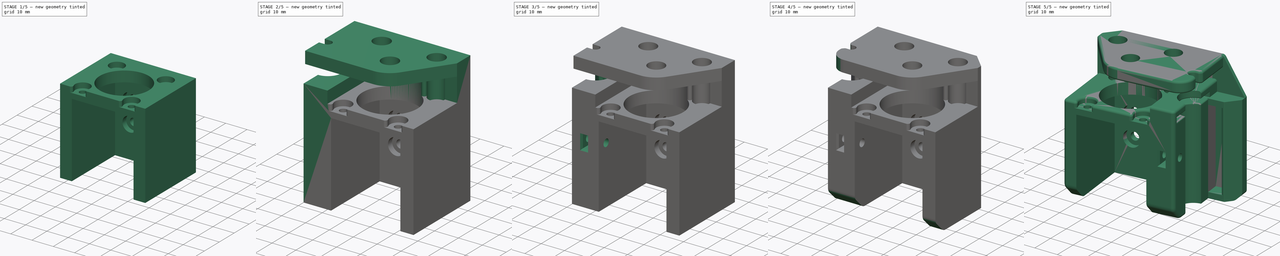
[diagram: build sequence overview — one tinted view per stage of 5, left to right]
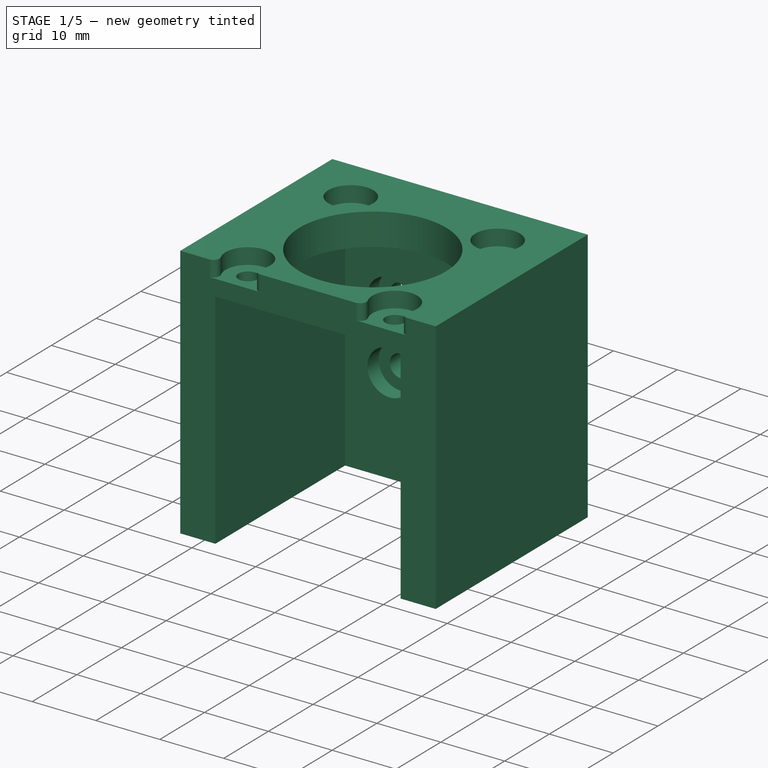
[diagram: stage 1 of 5 — iso view after this stage's code; geometry added in this stage tinted green]
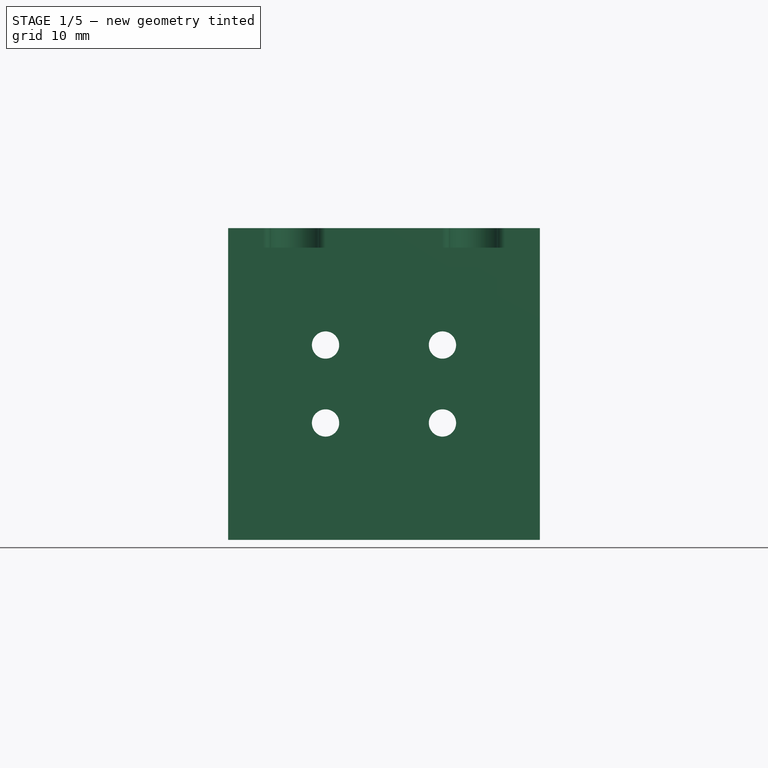
[diagram: stage 1 of 5 — front view after this stage's code; geometry added in this stage tinted green]
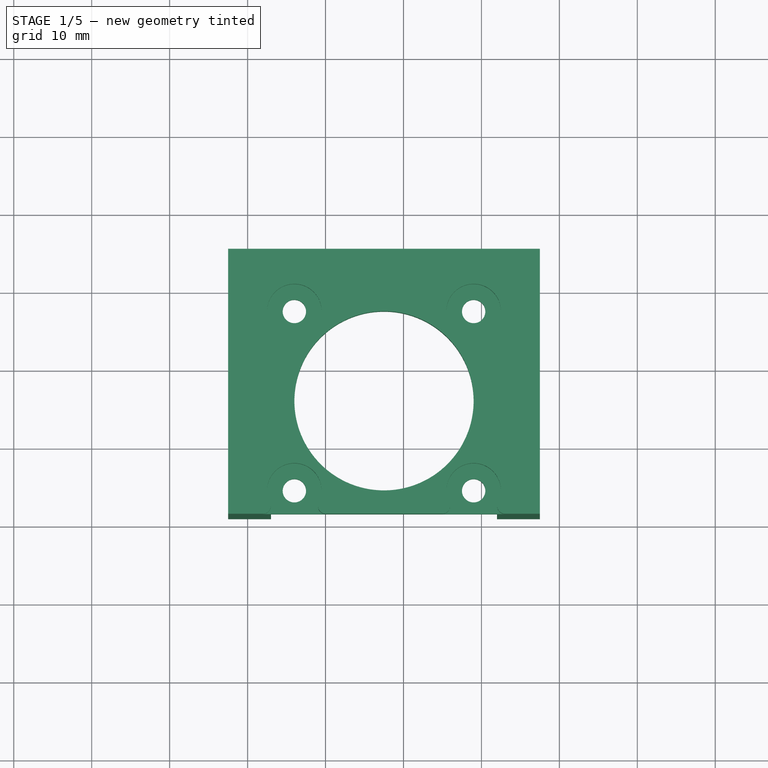
[diagram: stage 1 of 5 — top view after this stage's code; geometry added in this stage tinted green]
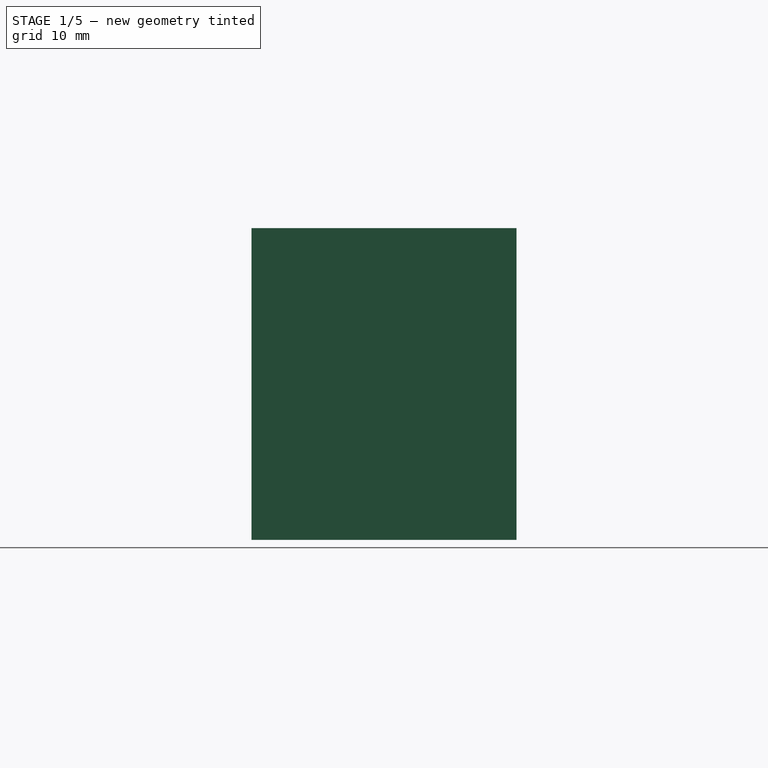
[diagram: stage 1 of 5 — right view after this stage's code; geometry added in this stage tinted green]
FCSTD DOCUMENT  (FreeCAD 1.1R20260106 (Git shallow))
Label: extruder-base
License: CERN Open Hardware Licence strongly-reciprocal
LicenseURL: https://cern-ohl.web.cern.ch/
objects: Sketcher::SketchObject×16, PartDesign::Pad×10, PartDesign::Fillet×9, PartDesign::Pocket×6, PartDesign::Chamfer×5, PartDesign::Plane×1, PartDesign::Body×1, App::Point×1, Part::Mirroring×1, Image::ImagePlane×1
note: 125 computed .brp shape members not serialized (recipe doc carries the construction recipe); baked Part::Feature solids carry a one-line shape summary decoded from their .brp

FEATURE [Sketcher::SketchObject] Sketch
  ArcFitTolerance = 0
  AttachmentSupport = -> [XZ_Plane]
  ExternalTypes = [0]
  FullyConstrained = true
  MakeInternals = false
  MapMode = 5
  Placement = pos=(0,0,0) rot=(1,0,0;1.5708rad)
  sketch-geometry (12):
    g0: LineSegment [constr] StartX=0 StartY=0 StartZ=0 EndX=15 EndY=0 EndZ=0
    g1: LineSegment [constr] StartX=15 StartY=0 StartZ=0 EndX=15 EndY=10 EndZ=0
    g2: LineSegment [constr] StartX=15 StartY=10 StartZ=0 EndX=0 EndY=10 EndZ=0
    g3: LineSegment [constr] StartX=0 StartY=10 StartZ=0 EndX=0 EndY=0 EndZ=0
    g4: Circle CenterX=0 CenterY=10 CenterZ=0 NormalX=0 NormalY=0 NormalZ=1 AngleXU=0 Radius=1.75
    g5: Circle CenterX=15 CenterY=10 CenterZ=0 NormalX=0 NormalY=0 NormalZ=1 AngleXU=0 Radius=1.75
    g6: Circle CenterX=15 CenterY=0 CenterZ=0 NormalX=0 NormalY=0 NormalZ=1 AngleXU=0 Radius=1.75
    g7: Circle CenterX=0 CenterY=0 CenterZ=0 NormalX=0 NormalY=0 NormalZ=1 AngleXU=0 Radius=1.75
    g8: LineSegment StartX=-12.5 StartY=25 StartZ=0 EndX=27.5 EndY=25 EndZ=0
    g9: LineSegment StartX=27.5 StartY=25 StartZ=0 EndX=27.5 EndY=-15 EndZ=0
    g10: LineSegment StartX=27.5 StartY=-15 StartZ=0 EndX=-12.5 EndY=-15 EndZ=0
    g11: LineSegment StartX=-12.5 StartY=-15 StartZ=0 EndX=-12.5 EndY=25 EndZ=0
  constraints (31):
    c: Coincident(g0,g1)
    c: Coincident(g1,g2)
    c: Coincident(g2,g3)
    c: Coincident(g3,g0)
    c: Horizontal(g0)
    c: Horizontal(g2)
    c: Vertical(g1)
    c: Vertical(g3)
    c: Coincident(g0,g-1)
    c: DistanceY(g3,g3) = 10
    c: DistanceX(g0,g0) = 15
    c: Coincident(g4,g2)
    c: Coincident(g5,g1)
    c: Coincident(g6,g0)
    c: Coincident(g7,g0)
    c: Diameter(g4) = 3.5
    c: Equal(g5,g4)
    c: Equal(g7,g4)
    c: Equal(g6,g4)
    c: Coincident(g8,g9)
    c: Coincident(g9,g10)
    c: Coincident(g10,g11)
    c: Coincident(g11,g8)
    c: Horizontal(g8)
    c: Horizontal(g10)
    c: Vertical(g9)
    c: Vertical(g11)
    c: DistanceX(g8,g8) = 40
    c: DistanceY(g11,g11) = 40
    c: DistanceX(g8,g7) = 12.5
    c: DistanceY(g10,g7) = 15
FEATURE [PartDesign::Pad] Pad
  Direction = (0,-1,2e-16)
  Length = 5
  Length2 = 10
  Placement = pos=(0,0,0) rot=(1,0,0;1.5708rad)
  Profile = -> Sketch
  ReferenceAxis = -> Sketch [N_Axis]
  Refine = true
  Reversed = true
  SideType = 0
  Suppressed = false
  Type = 0
  Type2 = 0
FEATURE [Sketcher::SketchObject] Sketch001
  ArcFitTolerance = 0
  AttachmentSupport = -> [XZ_Plane]
  ExternalTypes = [0]
  FullyConstrained = true
  MakeInternals = false
  MapMode = 5
  Placement = pos=(0,0,0) rot=(1,0,0;1.5708rad)
  sketch-geometry (8):
    g0: LineSegment [constr] StartX=0 StartY=0 StartZ=0 EndX=15 EndY=0 EndZ=0
    g1: LineSegment [constr] StartX=15 StartY=0 StartZ=0 EndX=15 EndY=10 EndZ=0
    g2: LineSegment [constr] StartX=15 StartY=10 StartZ=0 EndX=0 EndY=10 EndZ=0
    g3: LineSegment [constr] StartX=0 StartY=10 StartZ=0 EndX=0 EndY=0 EndZ=0
    g4: Circle CenterX=0 CenterY=10 CenterZ=0 NormalX=0 NormalY=0 NormalZ=1 AngleXU=0 Radius=3.5
    g5: Circle CenterX=15 CenterY=10 CenterZ=0 NormalX=0 NormalY=0 NormalZ=1 AngleXU=0 Radius=3.5
    g6: Circle CenterX=15 CenterY=0 CenterZ=0 NormalX=0 NormalY=0 NormalZ=1 AngleXU=0 Radius=3.5
    g7: Circle CenterX=0 CenterY=0 CenterZ=0 NormalX=0 NormalY=0 NormalZ=1 AngleXU=0 Radius=3.5
  constraints (19):
    c: Coincident(g0,g1)
    c: Coincident(g1,g2)
    c: Coincident(g2,g3)
    c: Coincident(g3,g0)
    c: Horizontal(g0)
    c: Horizontal(g2)
    c: Vertical(g1)
    c: Vertical(g3)
    c: Coincident(g0,g-1)
    c: Coincident(g4,g2)
    c: Coincident(g5,g1)
    c: Coincident(g6,g0)
    c: Coincident(g7,g0)
    c: DistanceX(g0,g0) = 15
    c: DistanceY(g3,g3) = 10
    c: Diameter(g4) = 7
    c: Diameter(g7) = 7
    c: Diameter(g5) = 7
    c: Diameter(g6) = 7
FEATURE [PartDesign::Pocket] Pocket
  BaseFeature = -> Pad
  Direction = (0,1,-2e-16)
  Length = 2.5
  Length2 = 5
  Placement = pos=(0,0,0) rot=(1,0,0;1.5708rad)
  Profile = -> Sketch001
  ReferenceAxis = -> Sketch001 [N_Axis]
  Refine = true
  SideType = 0
  Suppressed = false
  Type = 0
  Type2 = 0
FEATURE [Sketcher::SketchObject] Sketch002
  ArcFitTolerance = 0
  AttachmentSupport = -> [XZ_Plane]
  ExternalTypes = [0]
  FullyConstrained = true
  MakeInternals = false
  MapMode = 5
  Placement = pos=(0,0,0) rot=(1,0,0;1.5708rad)
  sketch-geometry (10):
    g0: LineSegment StartX=-12.5 StartY=-15 StartZ=0 EndX=-12.5 EndY=25 EndZ=0
    g1: LineSegment StartX=-12.5 StartY=25 StartZ=0 EndX=27.5 EndY=25 EndZ=0
    g2: LineSegment StartX=27.5 StartY=25 StartZ=0 EndX=27.5 EndY=-15 EndZ=0
    g3: LineSegment StartX=27.5 StartY=-15 StartZ=0 EndX=22 EndY=-15 EndZ=0
    g4: LineSegment StartX=22 StartY=-15 StartZ=0 EndX=22 EndY=20 EndZ=0
    g5: LineSegment StartX=22 StartY=20 StartZ=0 EndX=-7 EndY=20 EndZ=0
    g6: LineSegment StartX=-7 StartY=20 StartZ=0 EndX=-7 EndY=-15 EndZ=0
    g7: LineSegment StartX=-7 StartY=-15 StartZ=0 EndX=-12.5 EndY=-15 EndZ=0
    g8: LineSegment [constr] StartX=7.5 StartY=20 StartZ=0 EndX=7.5 EndY=0 EndZ=0
    g9: LineSegment [constr] StartX=7.5 StartY=20 StartZ=0 EndX=7.5 EndY=25 EndZ=0
  constraints (29):
    c: Vertical(g0)
    c: Coincident(g0,g1)
    c: Horizontal(g1)
    c: Coincident(g1,g2)
    c: Vertical(g2)
    c: Coincident(g2,g3)
    c: Horizontal(g3)
    c: Coincident(g3,g4)
    c: Vertical(g4)
    c: Coincident(g4,g5)
    c: Horizontal(g5)
    c: Coincident(g5,g6)
    c: Vertical(g6)
    c: Coincident(g6,g7)
    c: Coincident(g7,g0)
    c: Horizontal(g7)
    c: DistanceX(g5,g5) = 29
    c: PointOnObject(g8,g-1)
    c: Vertical(g8)
    c: DistanceX(g-1,g8) = 7.5
    c: Symmetric(g5,g4,g8)
    c: DistanceY(g0,g0) = 40
    c: PointOnObject(g3,g7)
    c: DistanceX(g1,g1) = 40
    c: Coincident(g9,g8)
    c: Symmetric(g1,g1,g9)
    c: Vertical(g9)
    c: Distance(g5,g1) = 5
    c: DistanceY(g-1,g0) = 25
FEATURE [PartDesign::Pad] Pad001
  BaseFeature = -> Pocket
  Direction = (0,-1,2e-16)
  Length = 29
  Length2 = 10
  Placement = pos=(0,0,0) rot=(1,0,0;1.5708rad)
  Profile = -> Sketch002
  ReferenceAxis = -> Sketch002 [N_Axis]
  Refine = true
  SideType = 0
  Suppressed = false
  Type = 0
  Type2 = 0
FEATURE [Sketcher::SketchObject] Sketch003
  ArcFitTolerance = 1e-06
  AttachmentSupport = -> [XY_Plane]
  ExternalTypes = [0]
  FullyConstrained = true
  MakeInternals = false
  MapMode = 5
  sketch-geometry (10):
    g0: LineSegment [constr] StartX=-4 StartY=-3 StartZ=0 EndX=-4 EndY=-26 EndZ=0
    g1: LineSegment [constr] StartX=-4 StartY=-26 StartZ=0 EndX=19 EndY=-26 EndZ=0
    g2: LineSegment [constr] StartX=19 StartY=-26 StartZ=0 EndX=19 EndY=-3 EndZ=0
    g3: LineSegment [constr] StartX=19 StartY=-3 StartZ=0 EndX=-4 EndY=-3 EndZ=0
    g4: Circle CenterX=-4 CenterY=-3 CenterZ=0 NormalX=0 NormalY=0 NormalZ=1 AngleXU=0 Radius=1.5
    g5: Circle CenterX=19 CenterY=-3 CenterZ=0 NormalX=0 NormalY=0 NormalZ=1 AngleXU=0 Radius=1.5
    g6: Circle CenterX=19 CenterY=-26 CenterZ=0 NormalX=0 NormalY=0 NormalZ=1 AngleXU=0 Radius=1.5
    g7: Circle CenterX=-4 CenterY=-26 CenterZ=0 NormalX=0 NormalY=0 NormalZ=1 AngleXU=0 Radius=1.5
    g8: LineSegment [constr] StartX=7.5 StartY=-3 StartZ=0 EndX=7.5 EndY=-26 EndZ=0
    g9: Circle CenterX=7.5 CenterY=-14.5 CenterZ=0 NormalX=0 NormalY=0 NormalZ=1 AngleXU=0 Radius=11.5
  constraints (24):
    c: Coincident(g0,g1)
    c: Coincident(g1,g2)
    c: Coincident(g2,g3)
    c: Coincident(g3,g0)
    c: Vertical(g0)
    c: Vertical(g2)
    c: Horizontal(g1)
    c: Horizontal(g3)
    c: Coincident(g4,g0)
    c: Coincident(g5,g2)
    c: Coincident(g6,g1)
    c: Coincident(g7,g0)
    c: Diameter(g4) = 3
    c: Diameter(g5) = 3
    c: Diameter(g6) = 3
    c: Diameter(g7) = 3
    c: DistanceX(g3,g3) = 23
    c: DistanceY(g0,g0) = 23
    c: DistanceX(g0,g-1) = 4
    c: DistanceY(g0,g-1) = 3
    c: Symmetric(g3,g3,g8)
    c: Symmetric(g1,g1,g8)
    c: Symmetric(g8,g8,g9)
    c: Diameter(g9) = 23
FEATURE [PartDesign::Pocket] Pocket001
  BaseFeature = -> Pad001
  Direction = (0,0,-1)
  Length = 50
  Length2 = 5
  Placement = pos=(0,0,0) rot=(1,0,0;1.5708rad)
  Profile = -> Sketch003
  ReferenceAxis = -> Sketch003 [N_Axis]
  Refine = true
  Reversed = true
  SideType = 0
  Suppressed = false
  Type = 0
  Type2 = 0
FEATURE [Sketcher::SketchObject] Sketch004
  ArcFitTolerance = 1e-06
  AttachmentSupport = -> [Pocket001]
  ExternalTypes = [0]
  FullyConstrained = true
  MakeInternals = false
  MapMode = 5
  Placement = pos=(0,1.27e-14,25) rot=(0,0,1;3.14159rad)
  sketch-geometry (4):
    g0: Circle CenterX=-19 CenterY=3 CenterZ=0 NormalX=0 NormalY=0 NormalZ=1 AngleXU=0 Radius=3.5
    g1: Circle CenterX=4 CenterY=3 CenterZ=0 NormalX=0 NormalY=0 NormalZ=1 AngleXU=0 Radius=3.5
    g2: Circle CenterX=-19 CenterY=26 CenterZ=0 NormalX=0 NormalY=0 NormalZ=1 AngleXU=0 Radius=3.5
    g3: Circle CenterX=4 CenterY=26 CenterZ=0 NormalX=0 NormalY=0 NormalZ=1 AngleXU=0 Radius=3.5
  constraints (8):
    c: Coincident(g0,g-3)
    c: Coincident(g1,g-4)
    c: Coincident(g2,g-6)
    c: Coincident(g3,g-5)
    c: Diameter(g2) = 7
    c: Diameter(g3) = 7
    c: Diameter(g0) = 7
    c: Diameter(g1) = 7
FEATURE [PartDesign::Pocket] Pocket002
  BaseFeature = -> Pocket001
  Direction = (0,0,-1)
  Length = 2.5
  Length2 = 5
  Placement = pos=(0,0,0) rot=(1,0,0;1.5708rad)
  Profile = -> Sketch004
  ReferenceAxis = -> Sketch004 [N_Axis]
  Refine = true
  SideType = 0
  Suppressed = false
  Type = 0
  Type2 = 0
FEATURE [PartDesign::Fillet] Fillet
  Base = -> Pocket002 [Edge44,Edge42,Edge40,Edge38]
  BaseFeature = -> Pocket002
  Placement = pos=(0,0,0) rot=(1,0,0;1.5708rad)
  Radius = 1
  Refine = true
  SupportTransform = false
  Suppressed = false
  UseAllEdges = false
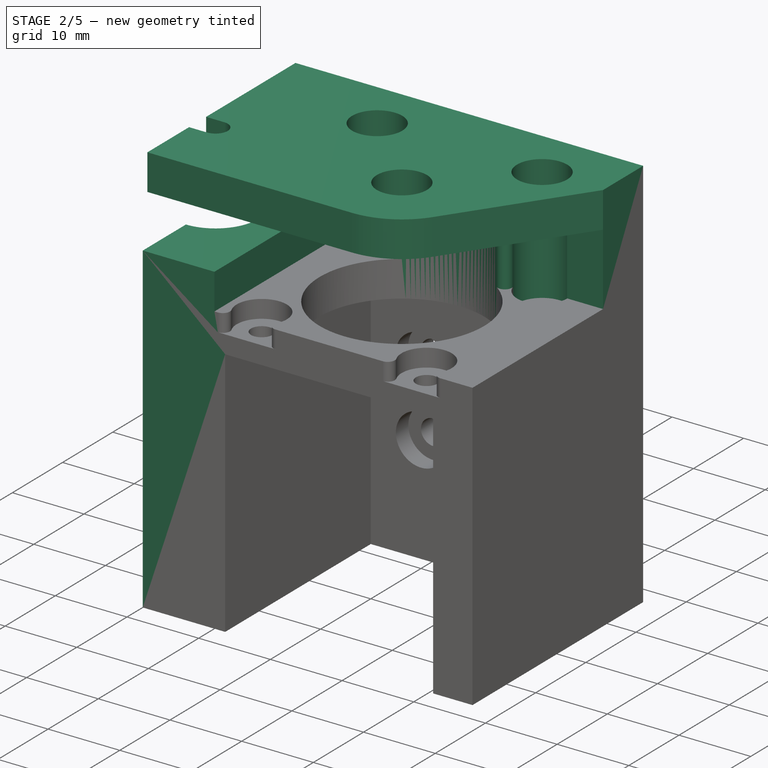
[diagram: stage 2 of 5 — iso view after this stage's code; geometry added in this stage tinted green]
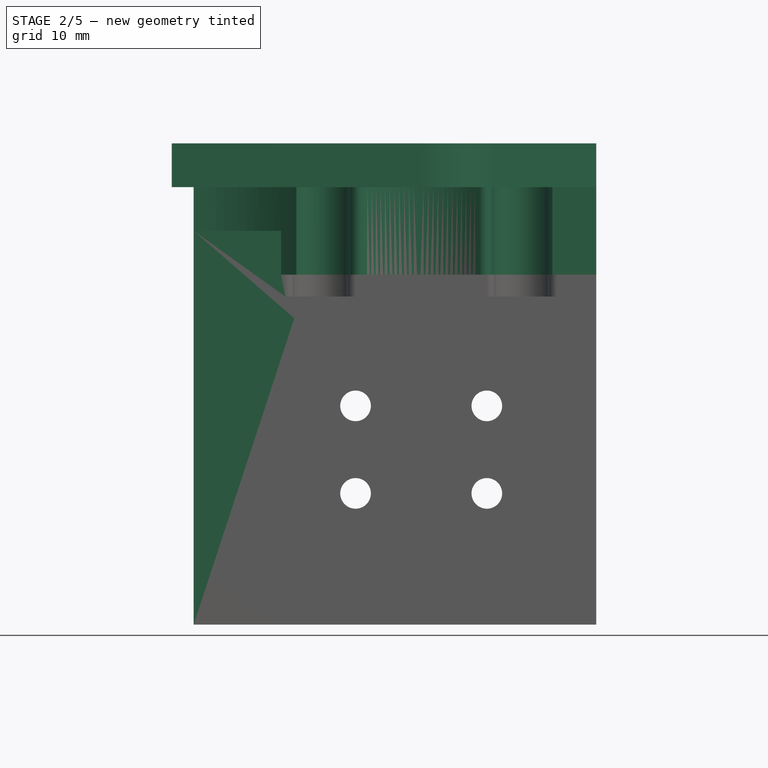
[diagram: stage 2 of 5 — front view after this stage's code; geometry added in this stage tinted green]
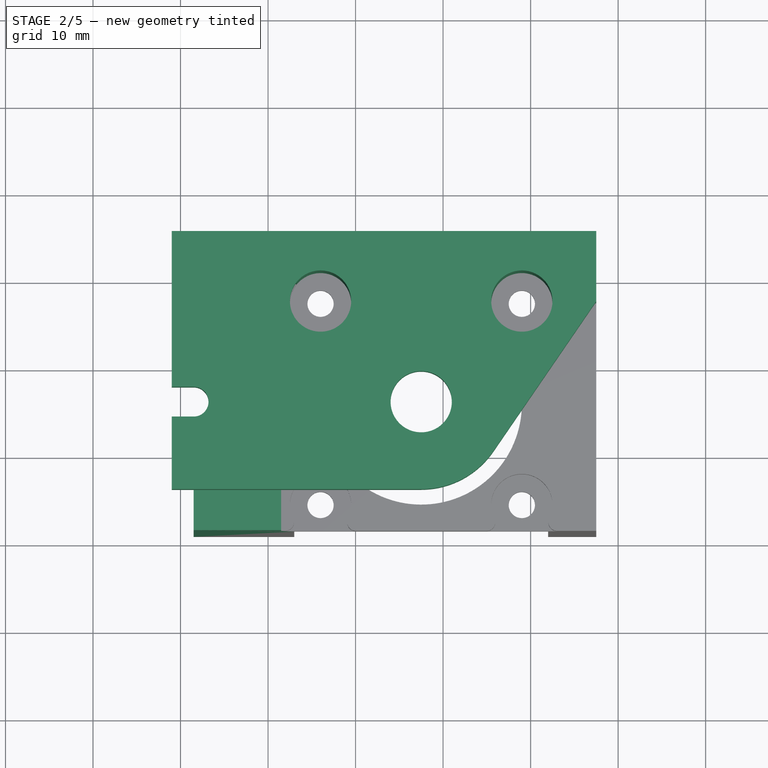
[diagram: stage 2 of 5 — top view after this stage's code; geometry added in this stage tinted green]
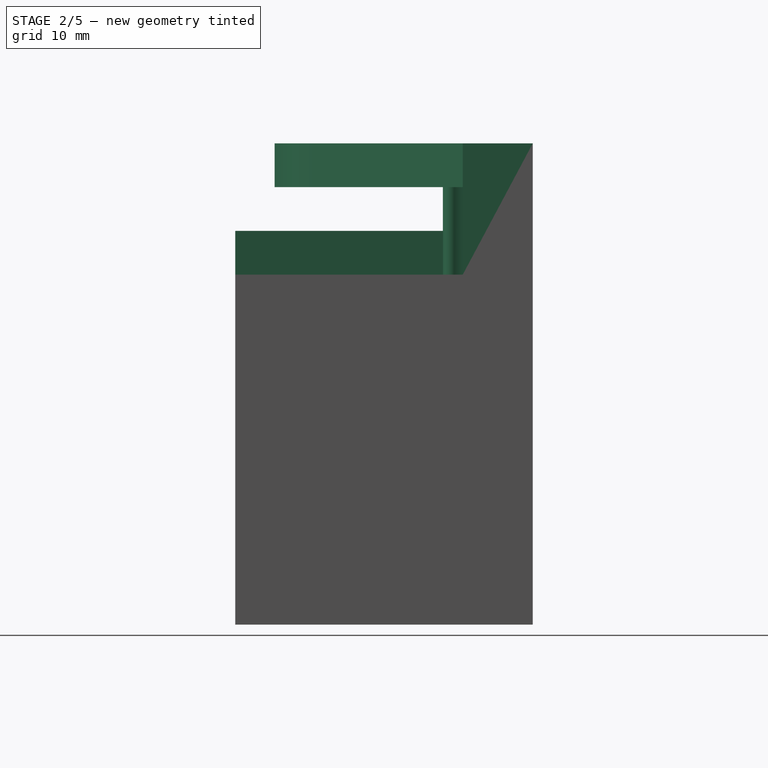
[diagram: stage 2 of 5 — right view after this stage's code; geometry added in this stage tinted green]
FEATURE [Sketcher::SketchObject] Sketch005
  ArcFitTolerance = 1e-06
  AttachmentSupport = -> [Fillet]
  ExternalTypes = [0]
  FullyConstrained = true
  MakeInternals = false
  MapMode = 5
  Placement = pos=(0,1.27e-14,25) rot=(0,0,1;3.14159rad)
  sketch-geometry (7):
    g0: ArcOfCircle CenterX=18.5 CenterY=14.5 CenterZ=0 NormalX=0 NormalY=0 NormalZ=1 AngleXU=0 Radius=5.9 StartAngle=1.5708 EndAngle=4.71239
    g1: LineSegment StartX=18.5 StartY=8.6 StartZ=0 EndX=18.5 EndY=-5 EndZ=0
    g2: LineSegment StartX=18.5 StartY=-5 StartZ=0 EndX=12.5 EndY=-5 EndZ=0
    g3: LineSegment StartX=12.5 StartY=-5 StartZ=0 EndX=12.5 EndY=29 EndZ=0
    g4: LineSegment StartX=12.5 StartY=29 StartZ=0 EndX=18.5 EndY=29 EndZ=0
    g5: LineSegment StartX=18.5 StartY=29 StartZ=0 EndX=18.5 EndY=20.4 EndZ=0
    g6: LineSegment [constr] StartX=0 StartY=14.5 StartZ=0 EndX=18.5 EndY=14.5 EndZ=0
  constraints (22):
    c: Coincident(g0,g1)
    c: Coincident(g1,g2)
    c: Horizontal(g2)
    c: Coincident(g2,g3)
    c: Vertical(g3)
    c: Coincident(g3,g4)
    c: Horizontal(g4)
    c: Coincident(g4,g5)
    c: Coincident(g5,g0)
    c: Vertical(g1)
    c: Vertical(g5)
    c: PointOnObject(g6,g-2)
    c: Coincident(g6,g0)
    c: Horizontal(g6)
    c: DistanceY(g-1,g6) = 14.5
    c: Radius(g0) = 5.9
    c: PointOnObject(g0,g1)
    c: DistanceY(g2,g-1) = 5
    c: DistanceX(g-1,g2) = 12.5
    c: DistanceY(g3,g3) = 34
    c: DistanceX(g2,g2) = 6
    c: DistanceX(g6,g6) = 18.5
FEATURE [PartDesign::Pad] Pad002
  BaseFeature = -> Fillet
  Direction = (0,0,1)
  Length = 40
  Length2 = 10
  Placement = pos=(0,0,0) rot=(1,0,0;1.5708rad)
  Profile = -> Sketch005
  ReferenceAxis = -> Sketch005 [N_Axis]
  Refine = true
  Reversed = true
  SideType = 0
  Suppressed = false
  Type = 0
  Type2 = 0
FEATURE [Sketcher::SketchObject] Sketch006
  ArcFitTolerance = 1e-06
  AttachmentSupport = -> [Pad002]
  ExternalGeometry = -> [Pad002]
  ExternalTypes = [0]
  FullyConstrained = true
  MakeInternals = false
  MapMode = 5
  Placement = pos=(0,1.05e-14,25) rot=(0,0,1;3.14159rad)
  sketch-geometry (6):
    g0: LineSegment StartX=18.5 StartY=-5 StartZ=0 EndX=8.5 EndY=-5 EndZ=0
    g1: LineSegment StartX=8.5 StartY=-5 StartZ=0 EndX=8.5 EndY=29 EndZ=0
    g2: LineSegment StartX=8.5 StartY=29 StartZ=0 EndX=18.5 EndY=29 EndZ=0
    g3: LineSegment StartX=18.5 StartY=29 StartZ=0 EndX=18.5 EndY=20.4 EndZ=0
    g4: ArcOfCircle CenterX=18.5 CenterY=14.5 CenterZ=0 NormalX=0 NormalY=0 NormalZ=1 AngleXU=0 Radius=5.9 StartAngle=1.5708 EndAngle=4.71239
    g5: LineSegment StartX=18.5 StartY=8.6 StartZ=0 EndX=18.5 EndY=-5 EndZ=0
  constraints (15):
    c: Horizontal(g0)
    c: Coincident(g0,g1)
    c: Vertical(g1)
    c: Coincident(g1,g2)
    c: Horizontal(g2)
    c: Coincident(g2,g3)
    c: Vertical(g3)
    c: Coincident(g0,g5)
    c: Coincident(g4,g3)
    c: Coincident(g4,g-3)
    c: Coincident(g5,g4)
    c: Coincident(g4,g-3)
    c: Coincident(g-4,g0)
    c: Coincident(g2,g-5)
    c: DistanceX(g0,g0) = 10
FEATURE [PartDesign::Pad] Pad003
  BaseFeature = -> Pad002
  Direction = (0,0,1)
  Length = 5
  Length2 = 10
  Placement = pos=(0,0,0) rot=(1,0,0;1.5708rad)
  Profile = -> Sketch006
  ReferenceAxis = -> Sketch006 [N_Axis]
  Refine = true
  SideType = 0
  Suppressed = false
  Type = 0
  Type2 = 0
FEATURE [Sketcher::SketchObject] Sketch007
  ArcFitTolerance = 1e-06
  AttachmentSupport = -> [Pad003]
  ExternalGeometry = -> [Pad003]
  ExternalTypes = [0]
  FullyConstrained = true
  MakeInternals = false
  MapMode = 5
  Placement = pos=(0,1.05e-14,25) rot=(0,0,1;3.14159rad)
  sketch-geometry (4):
    g0: LineSegment StartX=18.5 StartY=2 StartZ=0 EndX=18.5 EndY=27 EndZ=0
    g1: LineSegment StartX=18.5 StartY=27 StartZ=0 EndX=10.5 EndY=27 EndZ=0
    g2: LineSegment StartX=10.5 StartY=27 StartZ=0 EndX=10.5 EndY=2 EndZ=0
    g3: LineSegment StartX=10.5 StartY=2 StartZ=0 EndX=18.5 EndY=2 EndZ=0
  constraints (12):
    c: Coincident(g0,g1)
    c: Coincident(g1,g2)
    c: Coincident(g2,g3)
    c: Coincident(g3,g0)
    c: Vertical(g0)
    c: Vertical(g2)
    c: Horizontal(g1)
    c: Horizontal(g3)
    c: DistanceY(g0,g-4) = 12.5
    c: DistanceY(g2,g2) = 25
    c: DistanceX(g3,g3) = 8
    c: DistanceX(g-1,g0) = 18.5
FEATURE [PartDesign::Pocket] Pocket003
  BaseFeature = -> Pad003
  Direction = (0,0,-1)
  Length = 2
  Length2 = 5
  Placement = pos=(0,0,0) rot=(1,0,0;1.5708rad)
  Profile = -> Sketch007
  ReferenceAxis = -> Sketch007 [N_Axis]
  Refine = true
  Reversed = true
  SideType = 0
  Suppressed = false
  Type = 0
  Type2 = 0
FEATURE [PartDesign::Fillet] Fillet001
  Base = -> Pocket003 [Edge119,Edge110]
  BaseFeature = -> Pocket003
  Placement = pos=(0,0,0) rot=(1,0,0;1.5708rad)
  Radius = 5
  Refine = true
  SupportTransform = false
  Suppressed = false
  UseAllEdges = false
FEATURE [Sketcher::SketchObject] Sketch008
  ArcFitTolerance = 1e-06
  AttachmentSupport = -> [Fillet001]
  ExternalGeometry = -> [Fillet001]
  ExternalTypes = [0]
  FullyConstrained = true
  MakeInternals = false
  MapMode = 5
  Placement = pos=(0,1.05e-14,25) rot=(0,0,1;3.14159rad)
  sketch-geometry (10):
    g0: LineSegment StartX=-27.5 StartY=-5 StartZ=0 EndX=-27.5 EndY=3 EndZ=0
    g1: LineSegment StartX=-27.5 StartY=3 StartZ=0 EndX=-22.5 EndY=3 EndZ=0
    g2: LineSegment StartX=-27.5 StartY=-5 StartZ=0 EndX=18.5 EndY=-5 EndZ=0
    g3: LineSegment StartX=18.5 StartY=-5 StartZ=0 EndX=18.5 EndY=-3.5 EndZ=0
    g4: ArcOfCircle CenterX=18.5 CenterY=14.5 CenterZ=0 NormalX=0 NormalY=0 NormalZ=1 AngleXU=0 Radius=18 StartAngle=4.00214 EndAngle=4.71239
    g5: ArcOfCircle CenterX=4 CenterY=3 CenterZ=0 NormalX=0 NormalY=0 NormalZ=1 AngleXU=0 Radius=3.5 StartAngle=2.85552 EndAngle=5.62256
    g6: ArcOfCircle CenterX=-7.5 CenterY=14.5 CenterZ=0 NormalX=0 NormalY=0 NormalZ=1 AngleXU=0 Radius=11.5 StartAngle=4.10024 EndAngle=5.32454
    g7: ArcOfCircle CenterX=-19 CenterY=3 CenterZ=0 NormalX=0 NormalY=0 NormalZ=1 AngleXU=0 Radius=3.5 StartAngle=3.14159 EndAngle=6.56926
    g8: ArcOfCircle CenterX=-0.317118 CenterY=4.26984 CenterZ=0 NormalX=0 NormalY=0 NormalZ=1 AngleXU=0 Radius=1 StartAngle=5.99711 EndAngle=8.46613
    g9: ArcOfCircle CenterX=-14.6829 CenterY=4.26984 CenterZ=0 NormalX=0 NormalY=0 NormalZ=1 AngleXU=0 Radius=1 StartAngle=0.958644 EndAngle=3.42766
  constraints (27):
    c: Coincident(g-4,g0)
    c: Vertical(g0)
    c: Coincident(g0,g1)
    c: PointOnObject(g1,g-5)
    c: Horizontal(g1)
    c: Coincident(g0,g2)
    c: Horizontal(g2)
    c: Coincident(g2,g3)
    c: Vertical(g3)
    c: Coincident(g4,g-3)
    c: Coincident(g4,g3)
    c: Coincident(g5,g-6)
    c: Coincident(g5,g4)
    c: Coincident(g6,g-7)
    c: PointOnObject(g6,g-7)
    c: Coincident(g7,g-5)
    c: Coincident(g7,g1)
    c: PointOnObject(g4,g-6)
    c: Tangent(g8,g5) = 1.5708
    c: Tangent(g8,g6) = 1.5708
    c: Tangent(g9,g7) = 1.5708
    c: Tangent(g9,g6) = 1.5708
    c: Radius(g8) = 1
    c: Radius(g9) = 1
    c: DistanceY(g0,g0) = 8
    c: DistanceX(g-1,g2) = 18.5
    c: Radius(g4) = 18
FEATURE [PartDesign::Pad] Pad004
  BaseFeature = -> Fillet001
  Direction = (0,0,1)
  Length = 15
  Length2 = 10
  Placement = pos=(0,0,0) rot=(1,0,0;1.5708rad)
  Profile = -> Sketch008
  ReferenceAxis = -> Sketch008 [N_Axis]
  Refine = true
  SideType = 0
  Suppressed = false
  Type = 0
  Type2 = 0
FEATURE [Sketcher::SketchObject] Sketch009
  ArcFitTolerance = 1e-06
  AttachmentSupport = -> [Pad004]
  ExternalGeometry = -> [Pad004]
  ExternalTypes = [0]
  FullyConstrained = true
  MakeInternals = false
  MapMode = 5
  Placement = pos=(0,0,40) rot=(0,0,1;3.14159rad)
  sketch-geometry (14):
    g0: ArcOfCircle CenterX=18.5 CenterY=14.5 CenterZ=0 NormalX=0 NormalY=0 NormalZ=1 AngleXU=0 Radius=1.7 StartAngle=1.5708 EndAngle=4.71239
    g1: LineSegment StartX=18.5 StartY=12.8 StartZ=0 EndX=21 EndY=12.8 EndZ=0
    g2: LineSegment StartX=21 StartY=12.8 StartZ=0 EndX=21 EndY=-5 EndZ=0
    g3: LineSegment StartX=21 StartY=-5 StartZ=0 EndX=18.5 EndY=-5 EndZ=0
    g4: LineSegment StartX=18.5 StartY=-5 StartZ=0 EndX=-27.5 EndY=-5 EndZ=0
    g5: LineSegment StartX=-27.5 StartY=-5 StartZ=0 EndX=-27.5 EndY=3 EndZ=0
    g6: LineSegment StartX=-27.5 StartY=3 StartZ=0 EndX=-15.7497 EndY=20.1517 EndZ=0
    g7: LineSegment StartX=18.5 StartY=16.2 StartZ=0 EndX=21 EndY=16.2 EndZ=0
    g8: LineSegment StartX=21 StartY=16.2 StartZ=0 EndX=21 EndY=24.5 EndZ=0
    g9: LineSegment StartX=21 StartY=24.5 StartZ=0 EndX=-7.5 EndY=24.5 EndZ=0
    g10: ArcOfCircle CenterX=-7.5 CenterY=14.5 CenterZ=0 NormalX=0 NormalY=0 NormalZ=1 AngleXU=0 Radius=10 StartAngle=1.5708 EndAngle=2.54095
    g11: Circle CenterX=-19 CenterY=3 CenterZ=0 NormalX=0 NormalY=0 NormalZ=1 AngleXU=0 Radius=3.5
    g12: Circle CenterX=4 CenterY=3 CenterZ=0 NormalX=0 NormalY=0 NormalZ=1 AngleXU=0 Radius=3.5
    g13: Circle CenterX=-7.5 CenterY=14.5 CenterZ=0 NormalX=0 NormalY=0 NormalZ=1 AngleXU=0 Radius=3.5
  constraints (32):
    c: Coincident(g0,g-7)
    c: Tangent(g0,g1) = -1.5708
    c: Coincident(g1,g2)
    c: Vertical(g2)
    c: Coincident(g2,g3)
    c: Coincident(g3,g-3)
    c: Coincident(g3,g4)
    c: Coincident(g4,g-3)
    c: Coincident(g4,g5)
    c: Coincident(g5,g-5)
    c: Coincident(g5,g6)
    c: Tangent(g0,g7) = 1.5708
    c: Coincident(g7,g8)
    c: Vertical(g8)
    c: Coincident(g8,g9)
    c: Horizontal(g9)
    c: Coincident(g10,g-8)
    c: Tangent(g9,g10) = -1.5708
    c: Tangent(g10,g6) = 1.5708
    c: Horizontal(g1)
    c: Horizontal(g7)
    c: Radius(g0) = 1.7
    c: DistanceX(g1,g1) = 2.5
    c: PointOnObject(g7,g2)
    c: Radius(g10) = 10
    c: Horizontal(g3)
    c: Coincident(g11,g-4)
    c: PointOnObject(g-4,g11)
    c: Coincident(g12,g-9)
    c: PointOnObject(g-6,g12)
    c: Coincident(g13,g10)
    c: Diameter(g13) = 7
FEATURE [PartDesign::Pad] Pad005
  BaseFeature = -> Pad004
  Direction = (0,0,1)
  Length = 5
  Length2 = 10
  Placement = pos=(0,0,0) rot=(1,0,0;1.5708rad)
  Profile = -> Sketch009
  ReferenceAxis = -> Sketch009 [N_Axis]
  Refine = true
  Reversed = true
  SideType = 0
  Suppressed = false
  Type = 0
  Type2 = 0
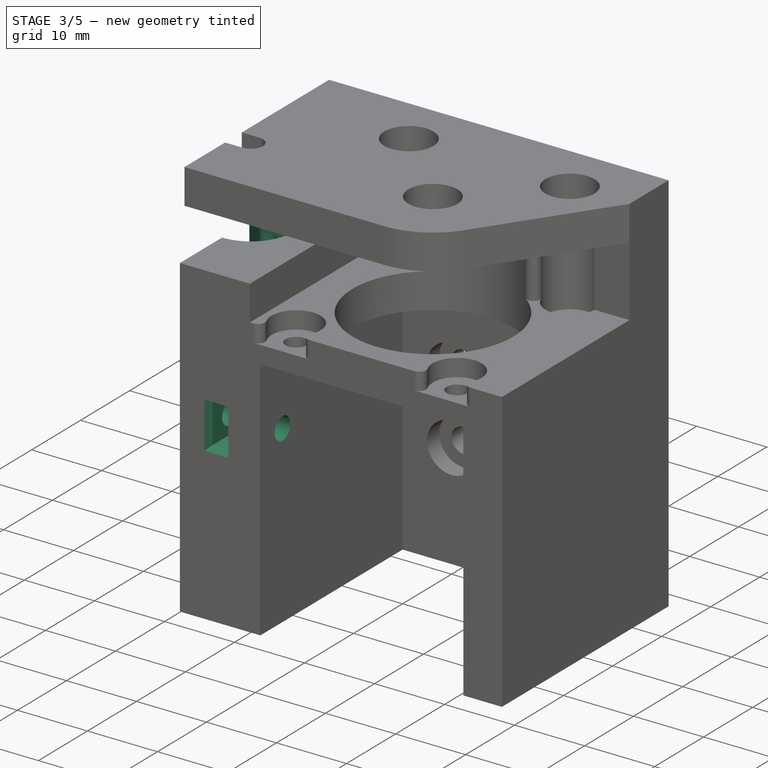
[diagram: stage 3 of 5 — iso view after this stage's code; geometry added in this stage tinted green]
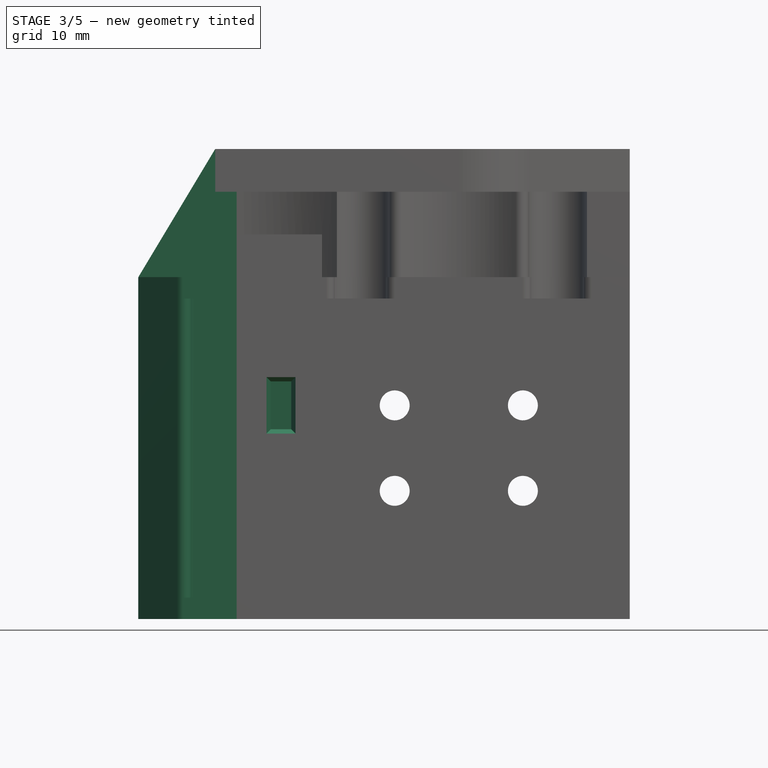
[diagram: stage 3 of 5 — front view after this stage's code; geometry added in this stage tinted green]
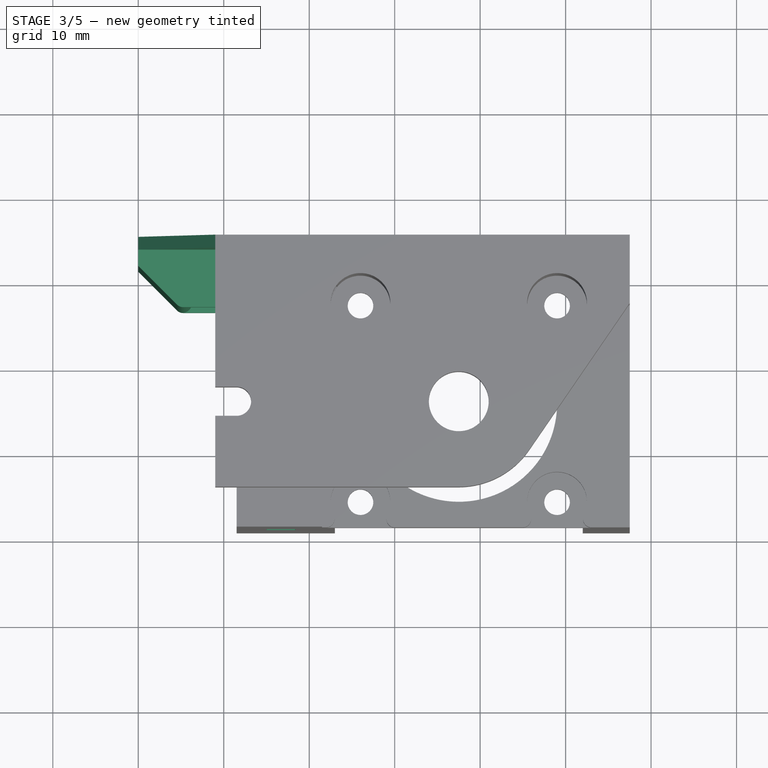
[diagram: stage 3 of 5 — top view after this stage's code; geometry added in this stage tinted green]
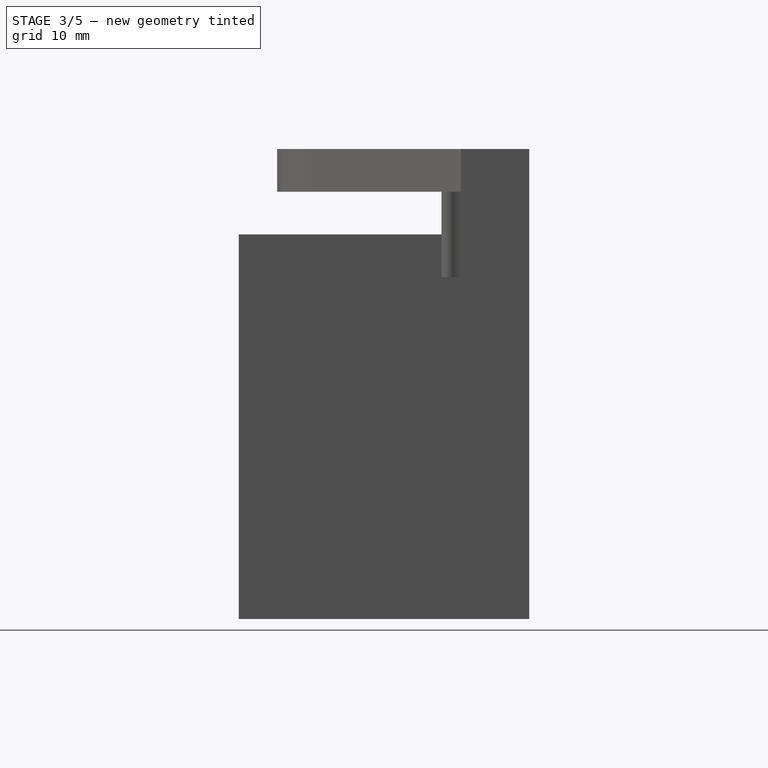
[diagram: stage 3 of 5 — right view after this stage's code; geometry added in this stage tinted green]
FEATURE [Sketcher::SketchObject] Sketch010
  ArcFitTolerance = 1e-06
  AttachmentSupport = -> [Pad005]
  ExternalGeometry = -> [Pad005]
  ExternalTypes = [0]
  FullyConstrained = true
  MakeInternals = false
  MapMode = 5
  Placement = pos=(0,-6e-15,-15) rot=(1,0,0;3.14159rad)
  sketch-geometry (8):
    g0: LineSegment StartX=-18.5 StartY=-5 StartZ=0 EndX=-30 EndY=-5 EndZ=0
    g1: LineSegment StartX=-30 StartY=-5 StartZ=0 EndX=-30 EndY=-1.59901 EndZ=0
    g2: LineSegment StartX=-30 StartY=-1.59901 StartZ=0 EndX=-25.475 EndY=2.92603 EndZ=0
    g3: ArcOfCircle CenterX=-24.7679 CenterY=2.21892 CenterZ=0 NormalX=0 NormalY=0 NormalZ=1 AngleXU=0 Radius=1 StartAngle=5.14872 EndAngle=8.63938
    g4: ArcOfCircle CenterX=-23.5 CenterY=-0.5 CenterZ=0 NormalX=0 NormalY=0 NormalZ=1 AngleXU=0 Radius=2 StartAngle=2.00713 EndAngle=4.71239
    g5: LineSegment StartX=-23.5 StartY=-2.5 StartZ=0 EndX=-18.5 EndY=-2.5 EndZ=0
    g6: LineSegment StartX=-18.5 StartY=-2.5 StartZ=0 EndX=-18.5 EndY=-5 EndZ=0
    g7: LineSegment [constr] StartX=-24.7679 StartY=2.21892 StartZ=0 EndX=-23.5 EndY=-0.5 EndZ=0
  constraints (21):
    c: Coincident(g-4,g0)
    c: Horizontal(g0)
    c: Coincident(g0,g1)
    c: Vertical(g1)
    c: Coincident(g1,g2)
    c: Tangent(g4,g5) = -1.5708
    c: Coincident(g6,g0)
    c: Horizontal(g5)
    c: Tangent(g4,g3) = 1.5708
    c: Tangent(g3,g2) = 1.5708
    c: Vertical(g6)
    c: Radius(g4) = 2
    c: Radius(g3) = 1
    c: Coincident(g7,g3)
    c: Coincident(g7,g4)
    c: Angle(g-1,g7) = 2.00713
    c: DistanceY(g4,g-5) = 15
    c: DistanceX(g0,g-1) = 30
    c: DistanceX(g4,g-5) = 5
    c: Coincident(g5,g6)
    c: Angle(g1,g2) = 2.35619
FEATURE [PartDesign::Pad] Pad006
  BaseFeature = -> Pad005
  Direction = (0,0,-1)
  Length = 40
  Length2 = 10
  Placement = pos=(0,0,0) rot=(1,0,0;1.5708rad)
  Profile = -> Sketch010
  ReferenceAxis = -> Sketch010 [N_Axis]
  Refine = true
  Reversed = true
  SideType = 0
  Suppressed = false
  Type = 0
  Type2 = 0
FEATURE [Sketcher::SketchObject] Sketch011
  ArcFitTolerance = 1e-06
  AttachmentSupport = -> [Pad006]
  ExternalGeometry = -> [Pad006]
  ExternalTypes = [0]
  FullyConstrained = false
  MakeInternals = false
  MapMode = 5
  Placement = pos=(0,0,25) rot=(0,0,1;3.14159rad)
  sketch-geometry (6):
    g0: LineSegment StartX=25.475 StartY=2.92603 StartZ=0 EndX=30 EndY=-1.59901 EndZ=0
    g1: LineSegment StartX=30 StartY=-1.59901 StartZ=0 EndX=30 EndY=-5 EndZ=0
    g2: LineSegment StartX=30 StartY=-5 StartZ=0 EndX=17.0207 EndY=-5 EndZ=0
    g3: LineSegment StartX=17.0207 StartY=-5 StartZ=0 EndX=17.0207 EndY=3.21892 EndZ=0
    g4: LineSegment StartX=17.0207 StartY=3.21892 StartZ=0 EndX=24.7679 EndY=3.21892 EndZ=0
    g5: ArcOfCircle CenterX=24.7679 CenterY=2.21892 CenterZ=0 NormalX=0 NormalY=0 NormalZ=1 AngleXU=0 Radius=1 StartAngle=0.785398 EndAngle=1.5708
  constraints (14):
    c: Coincident(g0,g1)
    c: Coincident(g1,g-4)
    c: Coincident(g1,g2)
    c: Horizontal(g2)
    c: Coincident(g2,g3)
    c: Vertical(g3)
    c: Coincident(g3,g4)
    c: PointOnObject(g4,g-3)
    c: Horizontal(g4)
    c: Coincident(g5,g-3)
    c: Vertical(g1)
    c: Angle(g0,g1) = 2.35619
    c: Tangent(g5,g4) = 1.5708
    c: Tangent(g5,g0) = 1.5708
FEATURE [PartDesign::Pad] Pad007
  BaseFeature = -> Pad006
  Direction = (0,0,1)
  Length = 2.5
  Length2 = 10
  Placement = pos=(0,0,0) rot=(1,0,0;1.5708rad)
  Profile = -> Sketch011
  ReferenceAxis = -> Sketch011 [N_Axis]
  Refine = true
  Reversed = true
  SideType = 0
  Suppressed = false
  Type = 0
  Type2 = 0
FEATURE [Sketcher::SketchObject] Sketch012
  ArcFitTolerance = 1e-06
  AttachmentSupport = -> [Pad007]
  ExternalGeometry = -> [Pad007]
  ExternalTypes = [0]
  FullyConstrained = false
  MakeInternals = false
  MapMode = 5
  Placement = pos=(0,-5.2e-15,-15) rot=(1,0,0;3.14159rad)
  sketch-geometry (6):
    g0: LineSegment StartX=-25.475 StartY=2.92603 StartZ=0 EndX=-30 EndY=-1.59901 EndZ=0
    g1: LineSegment StartX=-30 StartY=-1.59901 StartZ=0 EndX=-30 EndY=-5 EndZ=0
    g2: LineSegment StartX=-30 StartY=-5 StartZ=0 EndX=-15.8633 EndY=-5 EndZ=0
    g3: LineSegment StartX=-15.8633 StartY=-5 StartZ=0 EndX=-15.8633 EndY=3.21892 EndZ=0
    g4: LineSegment StartX=-15.8633 StartY=3.21892 StartZ=0 EndX=-24.7679 EndY=3.21892 EndZ=0
    g5: ArcOfCircle CenterX=-24.7679 CenterY=2.21892 CenterZ=0 NormalX=0 NormalY=0 NormalZ=1 AngleXU=0 Radius=1 StartAngle=1.5708 EndAngle=2.35619
  constraints (13):
    c: Coincident(g0,g-4)
    c: Coincident(g0,g1)
    c: Coincident(g1,g-4)
    c: Coincident(g1,g2)
    c: Horizontal(g2)
    c: Coincident(g2,g3)
    c: Vertical(g3)
    c: Coincident(g3,g4)
    c: PointOnObject(g4,g-3)
    c: Horizontal(g4)
    c: Coincident(g5,g-3)
    c: Tangent(g5,g4) = -1.5708
    c: Tangent(g0,g5) = -1.5708
FEATURE [PartDesign::Pad] Pad008
  BaseFeature = -> Pad007
  Direction = (0,0,-1)
  Length = 2.5
  Length2 = 10
  Placement = pos=(0,0,0) rot=(1,0,0;1.5708rad)
  Profile = -> Sketch012
  ReferenceAxis = -> Sketch012 [N_Axis]
  Refine = true
  Reversed = true
  SideType = 0
  Suppressed = false
  Type = 0
  Type2 = 0
FEATURE [Sketcher::SketchObject] Sketch013
  ArcFitTolerance = 1e-06
  AttachmentSupport = -> [Pad008]
  ExternalGeometry = -> [Pad008]
  ExternalTypes = [0]
  FullyConstrained = true
  MakeInternals = false
  MapMode = 5
  Placement = pos=(0,5,0) rot=(-1,0,0;1.5708rad)
  sketch-geometry (4):
    g0: LineSegment StartX=-30 StartY=-25 StartZ=0 EndX=-21 EndY=-40 EndZ=0
    g1: LineSegment StartX=-21 StartY=-40 StartZ=0 EndX=-18.5 EndY=-40 EndZ=0
    g2: LineSegment StartX=-18.5 StartY=-40 StartZ=0 EndX=-18.5 EndY=-25 EndZ=0
    g3: LineSegment StartX=-18.5 StartY=-25 StartZ=0 EndX=-30 EndY=-25 EndZ=0
  constraints (9):
    c: Coincident(g-3,g0)
    c: Coincident(g0,g-4)
    c: Coincident(g0,g1)
    c: Horizontal(g1)
    c: Coincident(g1,g2)
    c: Coincident(g2,g-3)
    c: Vertical(g2)
    c: Coincident(g2,g3)
    c: Coincident(g3,g0)
FEATURE [PartDesign::Pad] Pad009
  BaseFeature = -> Pad008
  Direction = (0,1,2e-16)
  Length = 1.5
  Length2 = 10
  Placement = pos=(0,0,0) rot=(1,0,0;1.5708rad)
  Profile = -> Sketch013
  ReferenceAxis = -> Sketch013 [N_Axis]
  Refine = true
  Reversed = true
  SideType = 0
  Suppressed = false
  Type = 0
  Type2 = 0
FEATURE [Sketcher::SketchObject] Sketch014
  ArcFitTolerance = 1e-06
  AttachmentSupport = -> [Pad009]
  ExternalGeometry = -> [Pad009]
  ExternalTypes = [0]
  FullyConstrained = true
  MakeInternals = false
  MapMode = 5
  Placement = pos=(-18.5,0,0) rot=(0.707107,0,-0.707107;3.14159rad)
  sketch-geometry (3):
    g0: Circle CenterX=-10 CenterY=24.5 CenterZ=0 NormalX=0 NormalY=0 NormalZ=1 AngleXU=0 Radius=1.6
    g1: LineSegment [constr] StartX=-25 StartY=14.5 StartZ=0 EndX=-10 EndY=14.5 EndZ=0
    g2: LineSegment [constr] StartX=-10 StartY=24.5 StartZ=0 EndX=-10 EndY=14.5 EndZ=0
  constraints (8):
    c: Diameter(g0) = 3.2
    c: Symmetric(g-3,g-3,g1)
    c: Horizontal(g1)
    c: Coincident(g2,g0)
    c: Coincident(g2,g1)
    c: Vertical(g2)
    c: DistanceX(g1,g1) = 15
    c: DistanceY(g2,g2) = 10
FEATURE [PartDesign::Pocket] Pocket004
  BaseFeature = -> Pad009
  Direction = (1,0,2e-16)
  Length = 12
  Length2 = 5
  Placement = pos=(0,0,0) rot=(1,0,0;1.5708rad)
  Profile = -> Sketch014
  ReferenceAxis = -> Sketch014 [N_Axis]
  Refine = true
  SideType = 0
  Suppressed = false
  Type = 0
  Type2 = 0
FEATURE [Sketcher::SketchObject] Sketch015
  ArcFitTolerance = 1e-06
  AttachmentSupport = -> [Pocket004]
  ExternalGeometry = -> [Pocket004]
  ExternalTypes = [0]
  FullyConstrained = true
  MakeInternals = false
  MapMode = 5
  Placement = pos=(0,-29,9e-15) rot=(1,0,0;1.5708rad)
  sketch-geometry (5):
    g0: LineSegment StartX=-14.5 StartY=12.8 StartZ=0 EndX=-14.5 EndY=7.2 EndZ=0
    g1: LineSegment StartX=-14.5 StartY=7.2 StartZ=0 EndX=-12.1 EndY=7.2 EndZ=0
    g2: LineSegment StartX=-12.1 StartY=7.2 StartZ=0 EndX=-12.1 EndY=12.8 EndZ=0
    g3: LineSegment StartX=-12.1 StartY=12.8 StartZ=0 EndX=-14.5 EndY=12.8 EndZ=0
    g4: LineSegment [constr] StartX=-18.5 StartY=10 StartZ=0 EndX=-14.5 EndY=10 EndZ=0
  constraints (14):
    c: Coincident(g0,g1)
    c: Coincident(g1,g2)
    c: Coincident(g2,g3)
    c: Coincident(g3,g0)
    c: Vertical(g0)
    c: Vertical(g2)
    c: Horizontal(g1)
    c: Horizontal(g3)
    c: Symmetric(g-3,g-3,g4)
    c: Symmetric(g0,g0,g4)
    c: Horizontal(g4)
    c: DistanceY(g0,g0) = 5.6
    c: DistanceX(g3,g3) = 2.4
    c: DistanceX(g4,g4) = 4
FEATURE [PartDesign::Pocket] Pocket005
  BaseFeature = -> Pocket004
  Direction = (0,1,-2e-16)
  Length = 7.5
  Length2 = 5
  Placement = pos=(0,0,0) rot=(1,0,0;1.5708rad)
  Profile = -> Sketch015
  ReferenceAxis = -> Sketch015 [N_Axis]
  Refine = true
  SideType = 0
  Suppressed = false
  Type = 0
  Type2 = 0
FEATURE [PartDesign::Chamfer] Chamfer
  Angle = 45
  Base = -> Pocket005 [Edge101,Edge102,Edge99,Edge100]
  BaseFeature = -> Pocket005
  ChamferType = 1
  FlipDirection = false
  Placement = pos=(0,0,0) rot=(1,0,0;1.5708rad)
  Refine = true
  Size = 0.5
  Size2 = 1
  SupportTransform = false
  Suppressed = false
  UseAllEdges = false
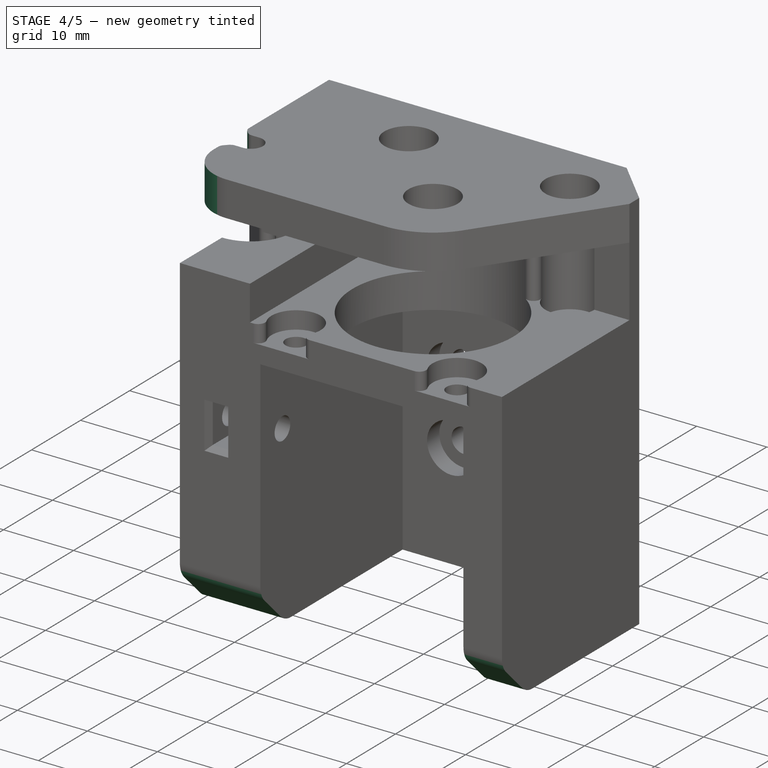
[diagram: stage 4 of 5 — iso view after this stage's code; geometry added in this stage tinted green]
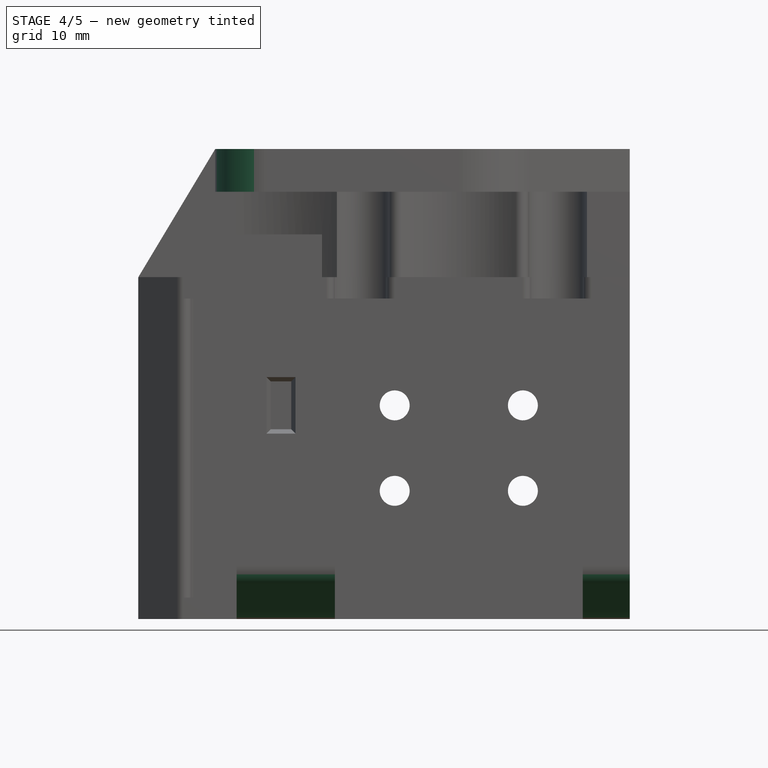
[diagram: stage 4 of 5 — front view after this stage's code; geometry added in this stage tinted green]
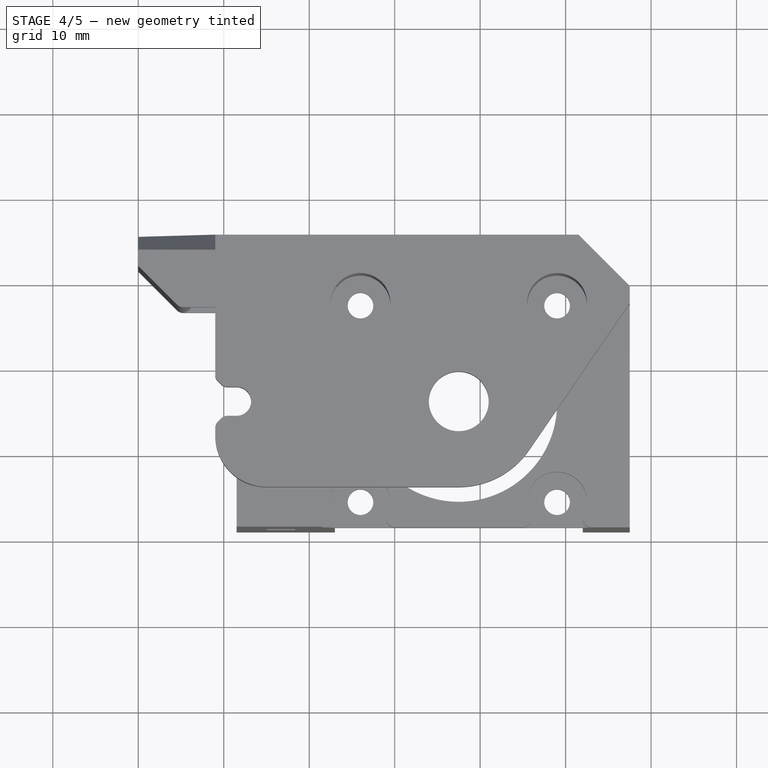
[diagram: stage 4 of 5 — top view after this stage's code; geometry added in this stage tinted green]
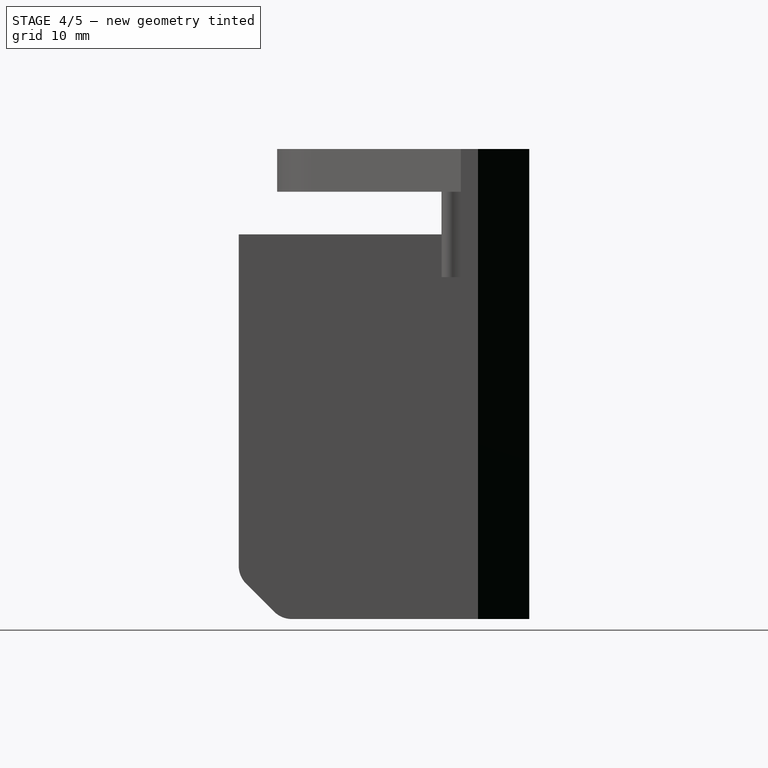
[diagram: stage 4 of 5 — right view after this stage's code; geometry added in this stage tinted green]
FEATURE [PartDesign::Fillet] Fillet002
  Base = -> Chamfer [Edge233]
  BaseFeature = -> Chamfer
  Placement = pos=(0,0,0) rot=(1,0,0;1.5708rad)
  Radius = 6
  Refine = true
  SupportTransform = false
  Suppressed = false
  UseAllEdges = false
FEATURE [PartDesign::Chamfer] Chamfer001
  Angle = 45
  Base = -> Fillet002 [Edge33,Edge21]
  BaseFeature = -> Fillet002
  ChamferType = 1
  FlipDirection = false
  Placement = pos=(0,0,0) rot=(1,0,0;1.5708rad)
  Refine = true
  Size = 1
  Size2 = 1
  SupportTransform = false
  Suppressed = false
  UseAllEdges = false
FEATURE [PartDesign::Fillet] Fillet003
  Base = -> Chamfer001 [Edge37,Edge41,Edge25,Edge22]
  BaseFeature = -> Chamfer001
  Placement = pos=(0,0,0) rot=(1,0,0;1.5708rad)
  Radius = 1
  Refine = true
  SupportTransform = false
  Suppressed = false
  UseAllEdges = false
FEATURE [PartDesign::Chamfer] Chamfer004
  Angle = 45
  Base = -> Fillet003 [Edge51]
  BaseFeature = -> Fillet003
  ChamferType = 0
  FlipDirection = false
  Placement = pos=(0,0,0) rot=(1,0,0;1.5708rad)
  Refine = true
  Size = 6
  Size2 = 1
  SupportTransform = false
  Suppressed = false
  UseAllEdges = false
FEATURE [PartDesign::Chamfer] Chamfer002
  Angle = 45
  Base = -> Chamfer004 [Edge101,Edge93]
  BaseFeature = -> Chamfer004
  ChamferType = 0
  FlipDirection = false
  Placement = pos=(0,0,0) rot=(1,0,0;1.5708rad)
  Refine = true
  Size = 5
  Size2 = 1
  SupportTransform = false
  Suppressed = false
  UseAllEdges = false
FEATURE [PartDesign::Fillet] Fillet005
  Base = -> Chamfer002 [Edge23,Edge9,Edge34,Edge17]
  BaseFeature = -> Chamfer002
  Placement = pos=(0,0,0) rot=(1,0,0;1.5708rad)
  Radius = 3
  Refine = true
  SupportTransform = false
  Suppressed = false
  UseAllEdges = false
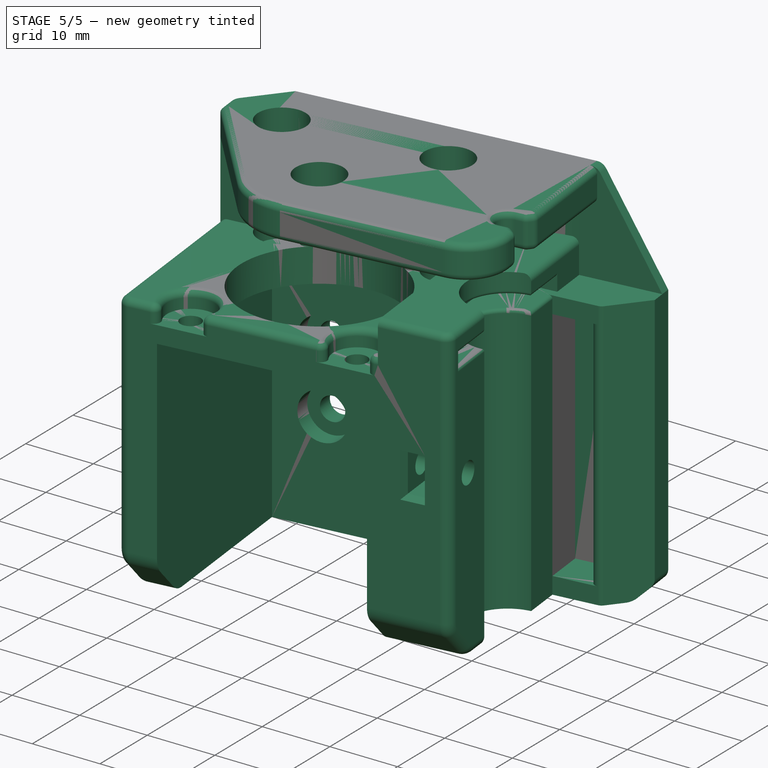
[diagram: stage 5 of 5 — iso view after this stage's code; geometry added in this stage tinted green]
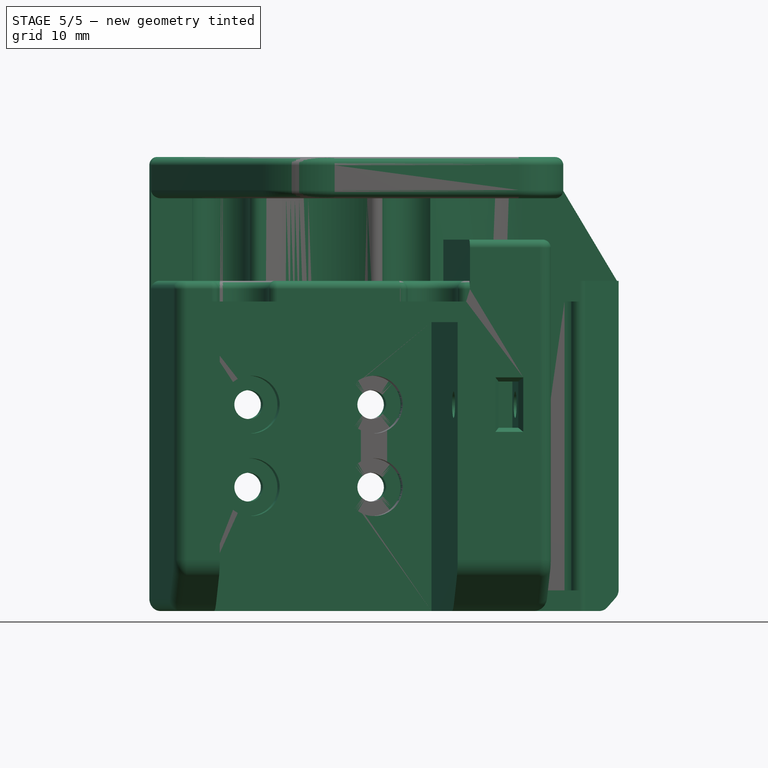
[diagram: stage 5 of 5 — front view after this stage's code; geometry added in this stage tinted green]
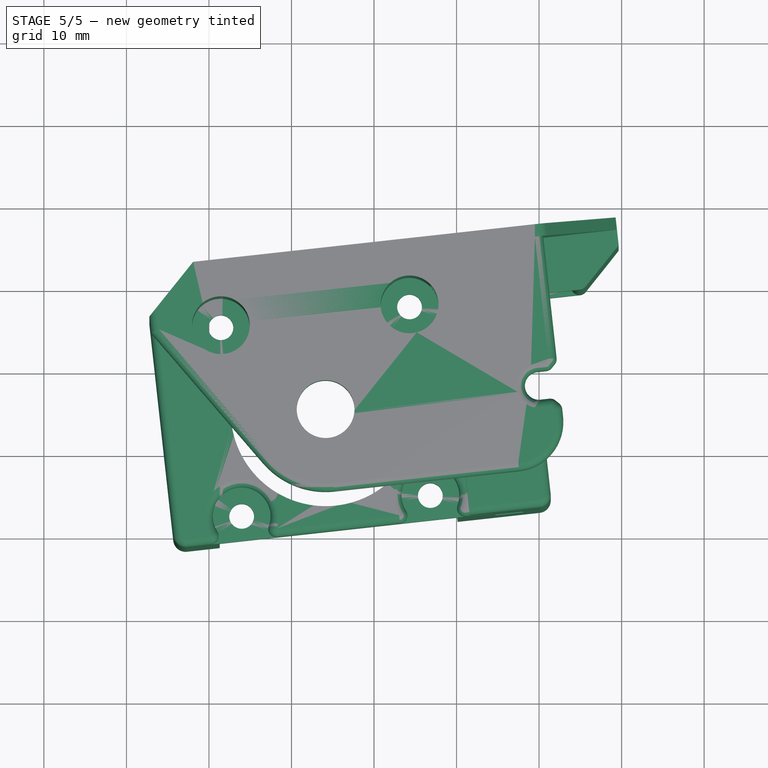
[diagram: stage 5 of 5 — top view after this stage's code; geometry added in this stage tinted green]
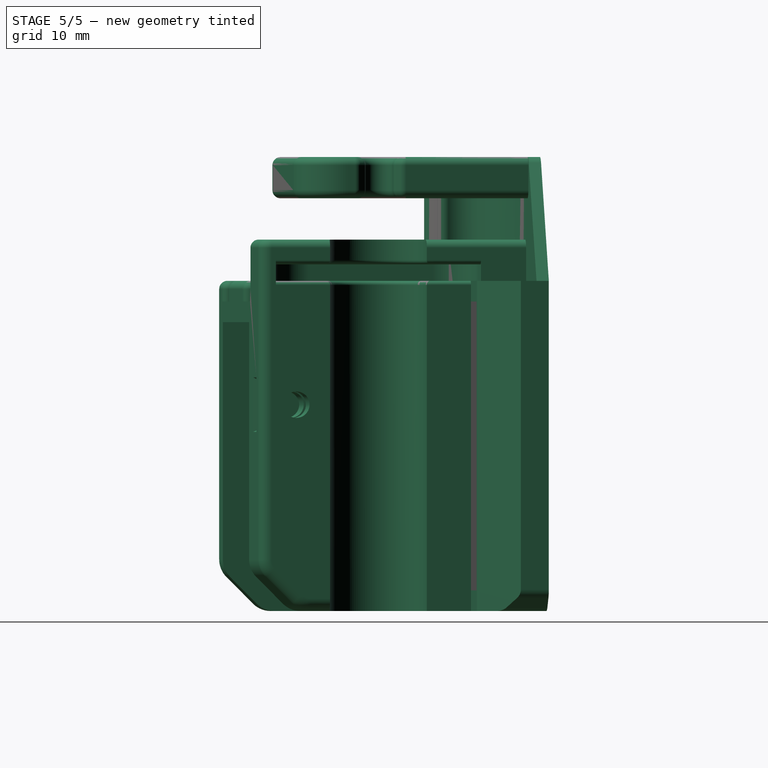
[diagram: stage 5 of 5 — right view after this stage's code; geometry added in this stage tinted green]
FEATURE [PartDesign::Fillet] Fillet006
  Base = -> Fillet005 [Edge8,Edge68]
  BaseFeature = -> Fillet005
  Placement = pos=(0,0,0) rot=(1,0,0;1.5708rad)
  Radius = 1.5
  Refine = true
  SupportTransform = false
  Suppressed = false
  UseAllEdges = false
FEATURE [PartDesign::Plane] DatumPlane
  AttachmentSupport = -> [Chamfer002]
  Length = 76.8491
  MapMode = 5
  Placement = pos=(-18.5,0,0) rot=(0.707107,0,-0.707107;3.14159rad)
  ResizeMode = 0
  Width = 65.8491
FEATURE [PartDesign::Fillet] Fillet007
  Base = -> Fillet006 [Edge21,Edge98,Edge244,Edge246,Edge63,Edge3]
  BaseFeature = -> Fillet006
  Placement = pos=(0,0,0) rot=(1,0,0;1.5708rad)
  Radius = 1
  Refine = true
  SupportTransform = false
  Suppressed = false
  UseAllEdges = false
FEATURE [PartDesign::Fillet] Fillet008
  Base = -> Fillet007 [Edge323,Edge412,Edge368,Edge223,Edge219,Edge331]
  BaseFeature = -> Fillet007
  Placement = pos=(0,0,0) rot=(1,0,0;1.5708rad)
  Radius = 0.5
  Refine = true
  SupportTransform = false
  Suppressed = false
  UseAllEdges = false
FEATURE [PartDesign::Chamfer] Chamfer005
  Angle = 45
  Base = -> Fillet008 [Edge38]
  BaseFeature = -> Fillet008
  ChamferType = 0
  FlipDirection = false
  Placement = pos=(0,0,0) rot=(1,0,0;1.5708rad)
  Refine = true
  Size = 2
  Size2 = 1
  SupportTransform = false
  Suppressed = false
  UseAllEdges = false
FEATURE [PartDesign::Fillet] Fillet009
  Base = -> Chamfer005 [Edge81,Edge25,Edge2]
  BaseFeature = -> Chamfer005
  Placement = pos=(0,0,0) rot=(1,0,0;1.5708rad)
  Radius = 1.5
  Refine = true
  SupportTransform = false
  Suppressed = false
  UseAllEdges = false
FEATURE [PartDesign::Body] Body  label="Body-left-z-gantry"
  AllowCompound = false
  Group = -> [Sketch,Pad,Sketch001,Pocket,Sketch002,Pad001,Sketch003,Pocket001,Sketch004,Pocket002,Fillet,Sketch005,Pad002,Sketch006,Pad003,Sketch007,Pocket003,Fillet001,Sketch008,Pad004,Sketch009,Pad005,Sketch010,Pad006,Sketch011,Pad007,Sketch012,Pad008,Sketch013,Pad009,Sketch014,Pocket004,Sketch015,Pocket005,Chamfer,Fillet002,Chamfer001,Fillet003,Chamfer004,Chamfer002,DatumPlane,Fillet005,Fillet006,Fillet007,+3 more]
  Origin = -> Origin
  Placement = pos=(0,0,0) rot=(0,0,-1;0.109773rad)
  Tip = -> Fillet009
FEATURE [App::Point] Origin001  label="Origin"
  Role = Origin
FEATURE [Part::Mirroring] Part__Mirroring  label="Body"
  Base = (0,0,0)
  MirrorPlane = -> YZ_Plane
  Normal = (1,-1e-16,1e-16)
  Source = -> Body
FEATURE [Image::ImagePlane] extruder_base  label="extruder-base"
  XSize = 677.249
  YSize = 380.952
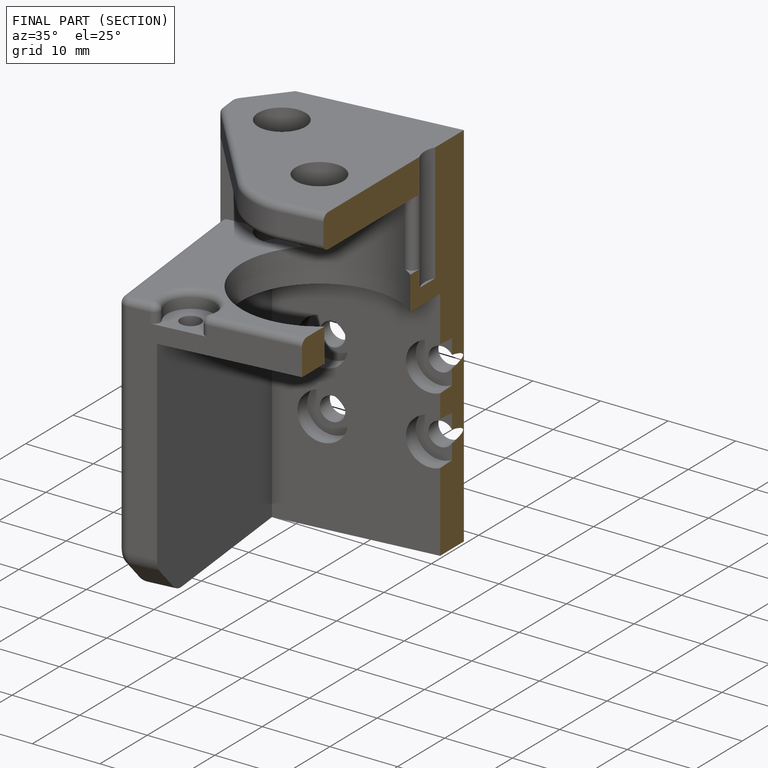
[diagram: finished part — half-section view (interior)]
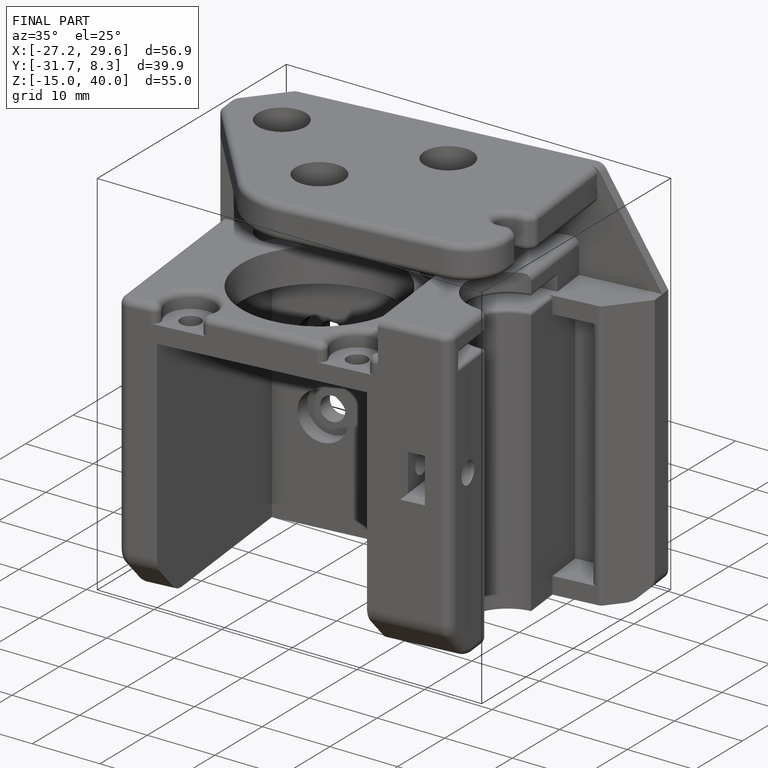
[diagram: finished part — iso view with bounding-box wireframe]
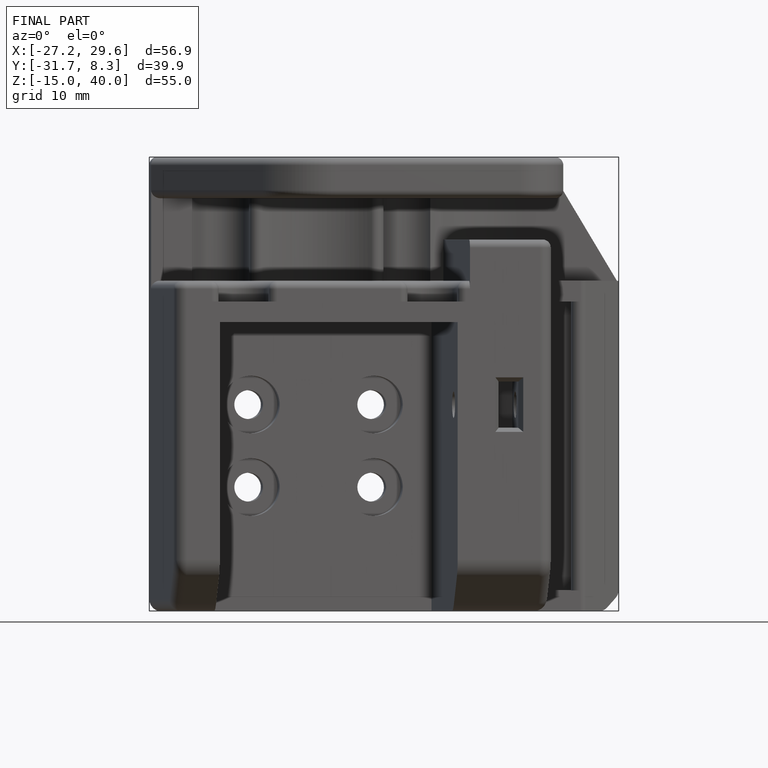
[diagram: finished part — front view with bounding-box wireframe]
